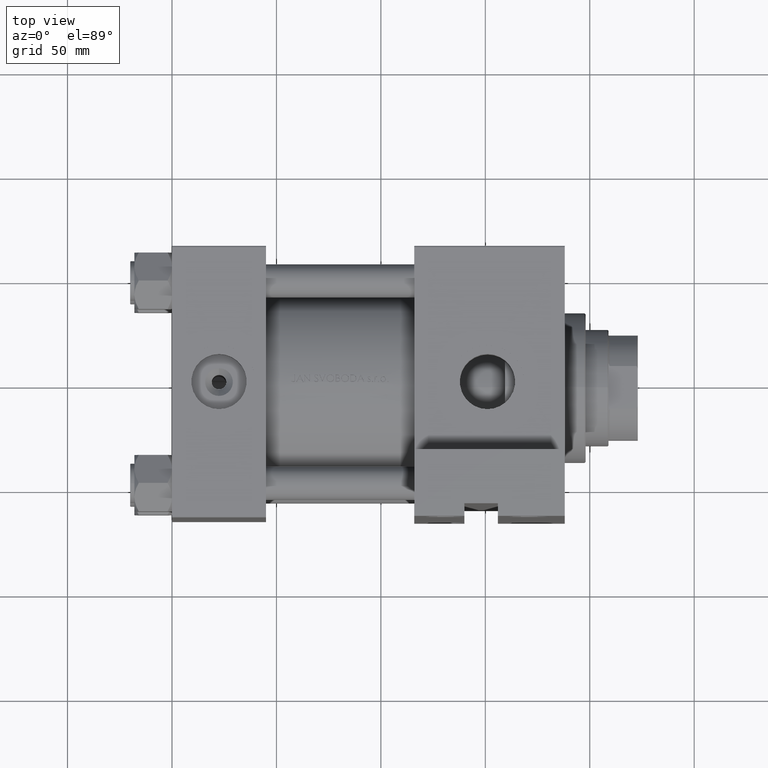
[diagram: clean part render]
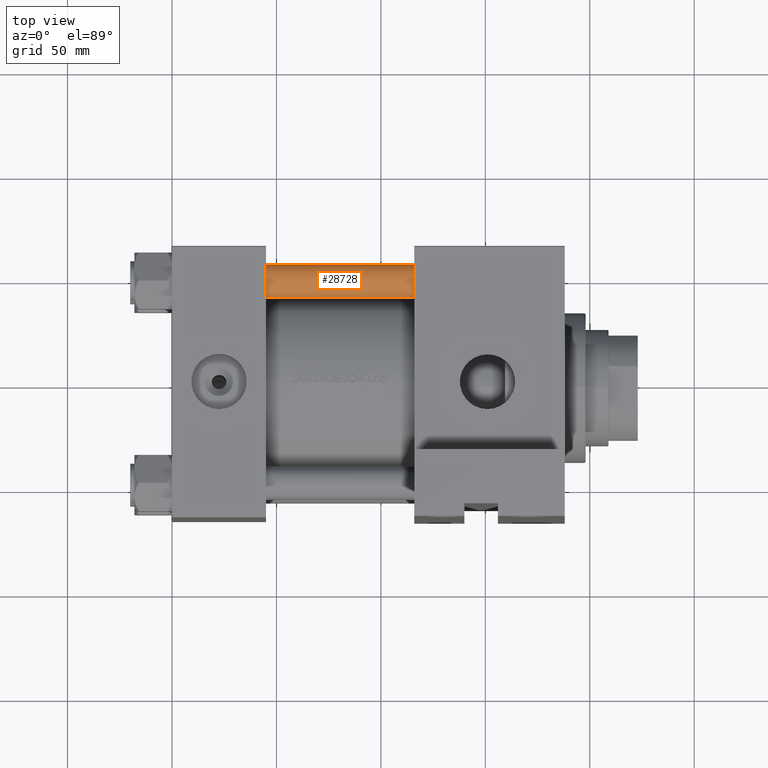
[diagram: same view with one face highlighted and labeled with its STEP entity id]
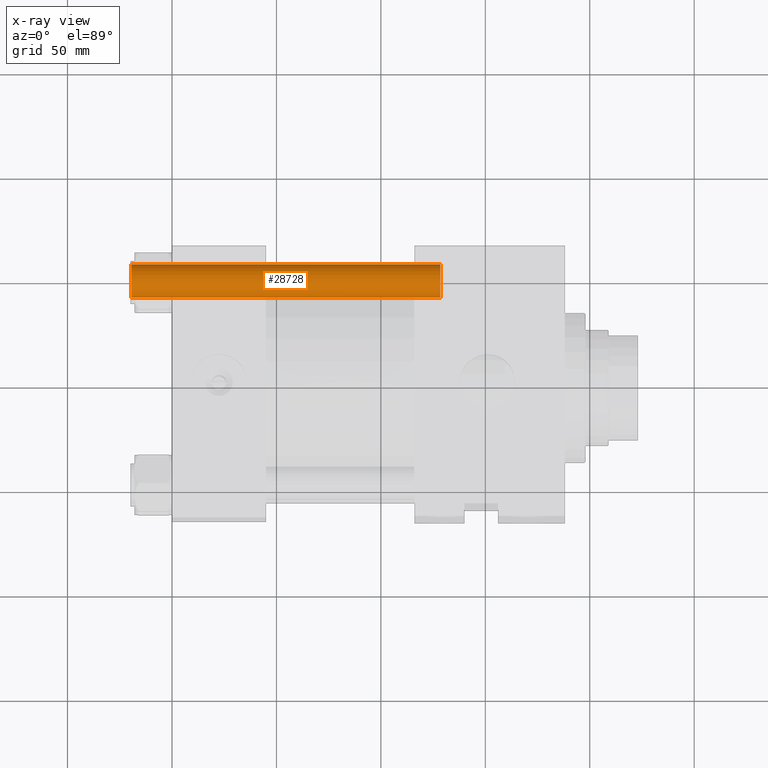
[diagram: x-ray of the same camera — body ghosted, the highlighted face saturated]
A machine part, top view. The second image highlights one B-rep face of the part: STEP entity #28728.
The next image is the same camera in x-ray: the body ghosted, the highlighted face saturated — about 0% of this face is hidden behind the body in this view.
In plain terms, the highlighted cylindrical surface (edge-blend (fillet) strip) has radius 8 mm, axis along (1, -0, 0).
Its self-contained STEP definition (entity closure, byte-faithful):
#2022 = EDGE_CURVE ( 'NONE', #36513, #34538, #23150, .T. ) ;
#2051 = EDGE_CURVE ( 'NONE', #37635, #19467, #39733, .T. ) ;
#4688 = CIRCLE ( 'NONE', #39011, 8.000000000000000000 ) ;
#5806 = DIRECTION ( 'NONE',  ( 1.000000000000000000, 0.000000000000000000, 0.000000000000000000 ) ) ;
#6037 = AXIS2_PLACEMENT_3D ( 'NONE', #31904, #27299, #5806 ) ;
#6571 = CARTESIAN_POINT ( 'NONE',  ( 0.000000000000000000, 0.000000000000000000, 0.5000000000000281997 ) ) ;
#7515 = DIRECTION ( 'NONE',  ( 1.000000000000000000, 0.000000000000000000, 0.000000000000000000 ) ) ;
#15280 = AXIS2_PLACEMENT_3D ( 'NONE', #23533, #20823, #38429 ) ;
#16541 = DIRECTION ( 'NONE',  ( -0.000000000000000000, -0.000000000000000000, -1.000000000000000000 ) ) ;
#19467 = VERTEX_POINT ( 'NONE', #25430 ) ;
#19786 = EDGE_CURVE ( 'NONE', #36513, #37635, #48107, .T. ) ;
#20823 = DIRECTION ( 'NONE',  ( -0.000000000000000000, -0.000000000000000000, -1.000000000000000000 ) ) ;
#21817 = VECTOR ( 'NONE', #41702, 1000.000000000000000 ) ;
#23150 = LINE ( 'NONE', #45356, #21817 ) ;
#23533 = CARTESIAN_POINT ( 'NONE',  ( 0.000000000000000000, 0.000000000000000000, 149.0000000000000000 ) ) ;
#24115 = CARTESIAN_POINT ( 'NONE',  ( -8.000000000000000000, 0.000000000000000000, 149.0000000000000000 ) ) ;
#24278 = ORIENTED_EDGE ( 'NONE', *, *, #19786, .T. ) ;
#25430 = CARTESIAN_POINT ( 'NONE',  ( -8.000000000000000000, 0.000000000000000000, 0.5000000000000281997 ) ) ;
#27299 = DIRECTION ( 'NONE',  ( 0.000000000000000000, 0.000000000000000000, -1.000000000000000000 ) ) ;
#28728 = ADVANCED_FACE ( 'NONE', ( #45975 ), #38906, .T. ) ;
#29737 = DIRECTION ( 'NONE',  ( -0.000000000000000000, -0.000000000000000000, 1.000000000000000000 ) ) ;
#31904 = CARTESIAN_POINT ( 'NONE',  ( 0.000000000000000000, 0.000000000000000000, 148.5000000000000000 ) ) ;
#32843 = CARTESIAN_POINT ( 'NONE',  ( 8.000000000000000000, 9.797174393178825657E-16, 0.5000000000000281997 ) ) ;
#33400 = ORIENTED_EDGE ( 'NONE', *, *, #2022, .F. ) ;
#34538 = VERTEX_POINT ( 'NONE', #32843 ) ;
#36513 = VERTEX_POINT ( 'NONE', #45028 ) ;
#37635 = VERTEX_POINT ( 'NONE', #46448 ) ;
#38429 = DIRECTION ( 'NONE',  ( -1.000000000000000000, 0.000000000000000000, 0.000000000000000000 ) ) ;
#38906 = CYLINDRICAL_SURFACE ( 'NONE', #15280, 8.000000000000000000 ) ;
#39011 = AXIS2_PLACEMENT_3D ( 'NONE', #6571, #29737, #7515 ) ;
#39733 = LINE ( 'NONE', #24115, #40520 ) ;
#40192 = EDGE_CURVE ( 'NONE', #19467, #34538, #4688, .T. ) ;
#40520 = VECTOR ( 'NONE', #16541, 1000.000000000000000 ) ;
#41199 = ORIENTED_EDGE ( 'NONE', *, *, #2051, .T. ) ;
#41702 = DIRECTION ( 'NONE',  ( -0.000000000000000000, -0.000000000000000000, -1.000000000000000000 ) ) ;
#43217 = ORIENTED_EDGE ( 'NONE', *, *, #40192, .T. ) ;
#45028 = CARTESIAN_POINT ( 'NONE',  ( 8.000000000000000000, 9.797174393178825657E-16, 148.5000000000000000 ) ) ;
#45356 = CARTESIAN_POINT ( 'NONE',  ( 8.000000000000000000, 9.797174393178825657E-16, 149.0000000000000000 ) ) ;
#45959 = EDGE_LOOP ( 'NONE', ( #33400, #24278, #41199, #43217 ) ) ;
#45975 = FACE_OUTER_BOUND ( 'NONE', #45959, .T. ) ;
#46448 = CARTESIAN_POINT ( 'NONE',  ( -8.000000000000000000, 0.000000000000000000, 148.5000000000000000 ) ) ;
#48107 = CIRCLE ( 'NONE', #6037, 8.000000000000000000 ) ;